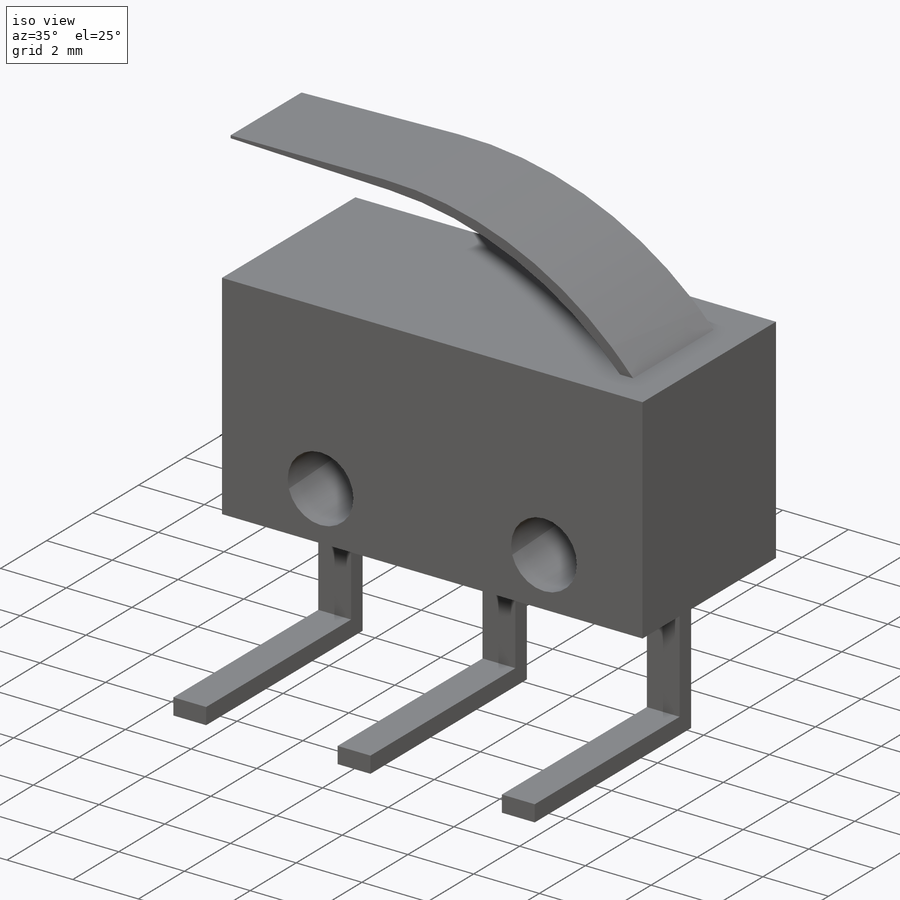
[diagram: iso view]
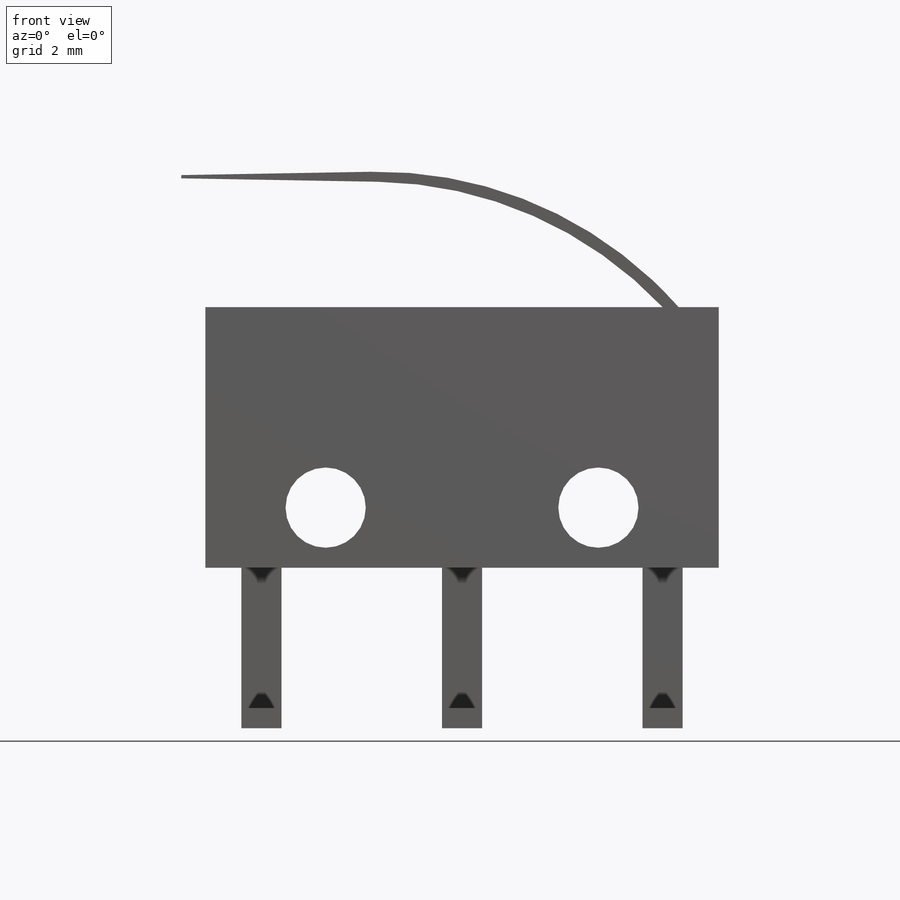
[diagram: front view]
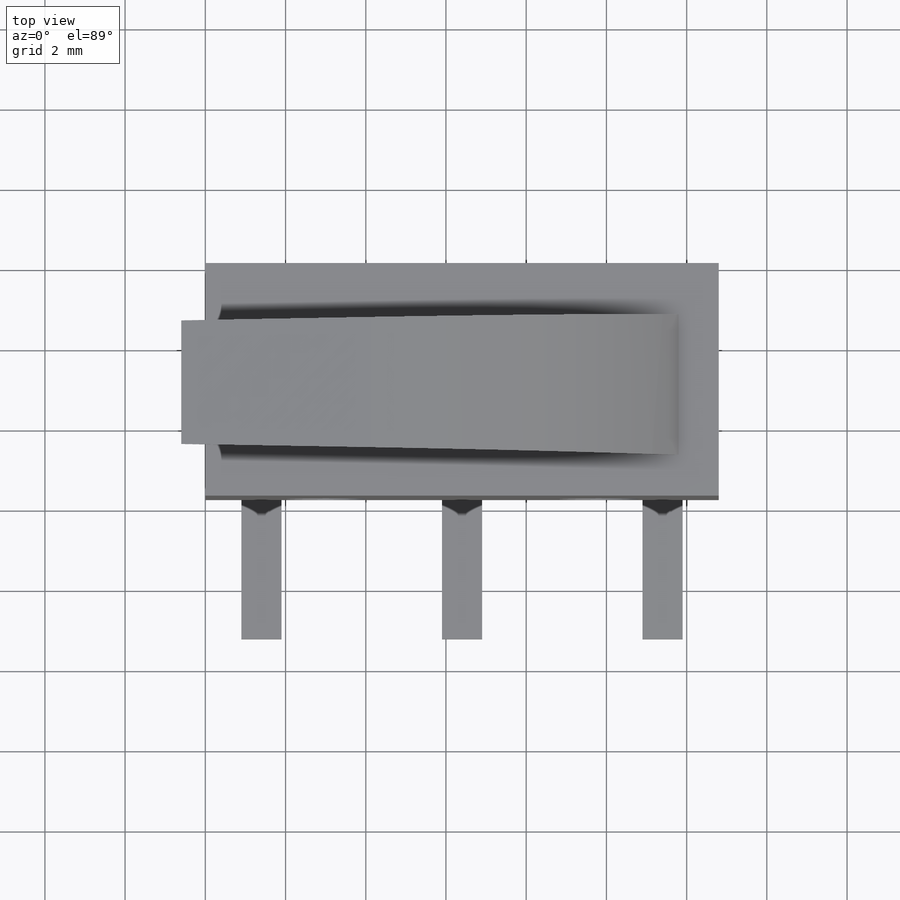
[diagram: top view]
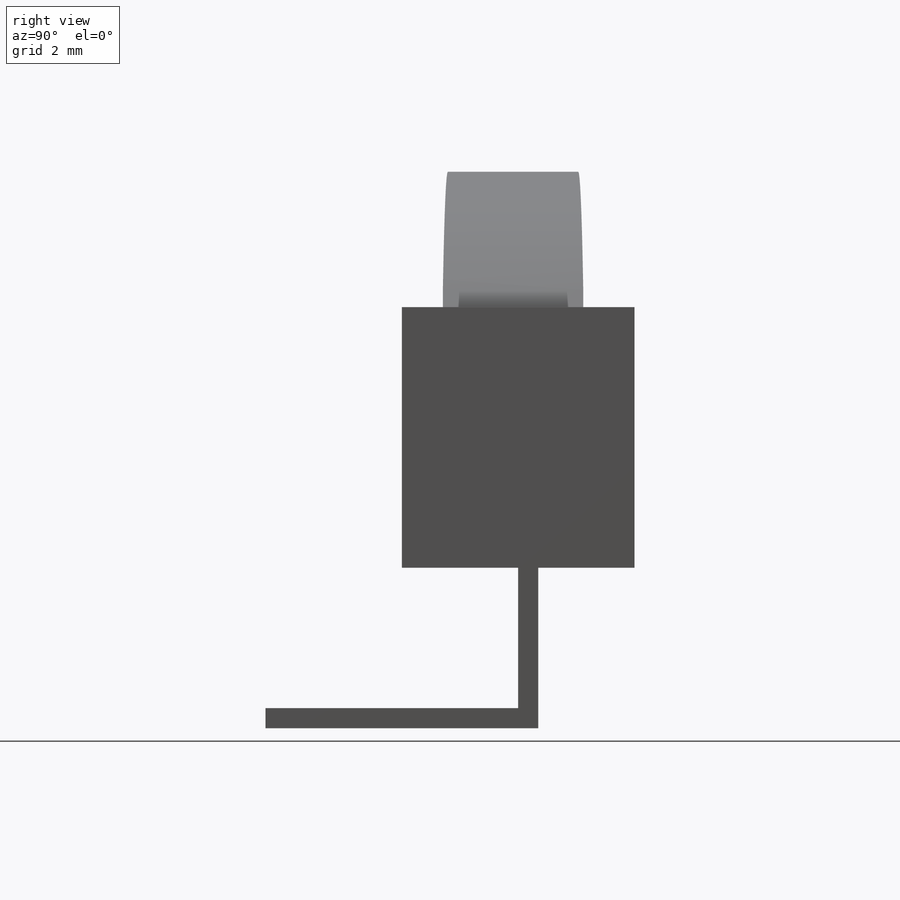
[diagram: right view]
SOLIDWORKS PART (.sldprt)
format: sldprt  version: not decoded by parser v0  size: 242,176 bytes
history: native  units: mm
features: sketch x6, extrude x5, plane x3, fillet x2, material x1, cut_extrude x1 (+10 scaffold rows collapsed)
feature tree (28):
  scaffold x10  (default folders/planes/origin — collapsed)
  material  "Matériau <non spécifié>"
  plane  "Plan de face"
  plane  "Plan de dessus"
  plane  "Plan de droite"
  sketch  "Esquisse1"  dims[D1=12.8mm D2=6.5mm]
  extrude  "Boss.-Extru.1"  Depth=5.8mm
  sketch  "Esquisse2"  dims[c1.D1=1.0mm c1.0.5=0.5mm c1.D3=2.4mm c1.D4=0.9mm c1.D6=4.0mm c1.D7=0.5mm c1.D2=0.9mm c2.D7=0.5mm c2.D5=3.0]
  extrude  "Boss.-Extru.2"  Depth=4mm
  sketch  "Esquisse3"  dims[D1=0.5mm D2=1.0mm]
  extrude  "Boss.-Extru.3"  Depth=6.3mm
  sketch  "Esquisse4"  dims[D1=2.0mm D2=1.5mm D3=3.0mm]
  cut_extrude  "Enlèv. mat.-Extru.1"  Depth=6.3mm
  sketch  "Esquisse5"  dims[D1=3.5mm D2=0.4mm D3=1.0mm]
  extrude  "Boss.-Extru.4"  Depth=3.5mm
  sketch  "Esquisse6"  dims[D1=0.5mm]
  extrude  "Boss.-Extru.5"  Depth=12mm
  fillet  "Congé1"  Radius=10mm
  fillet  "Congé2"  Radius=10mm
decode coverage: 14 of 14 modeling features carry decoded parameters
note: suppression state not decoded; provenance and decode notes live in map.json
